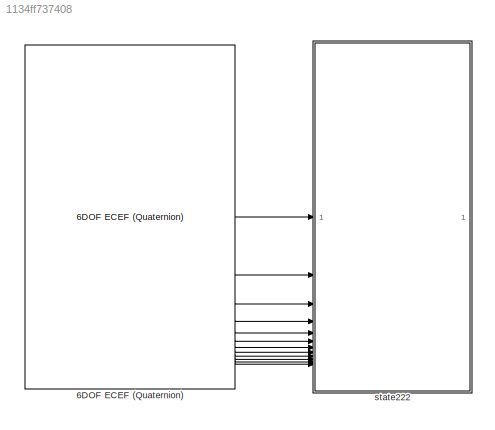
MODEL slx_1134ff737408
KIND model
CONFIG AbsTol = auto
CONFIG EnableMultiTasking = off
CONFIG FixedStep = auto
CONFIG MaxStep = auto
CONFIG MinStep = auto
CONFIG RelTol = 1e-3
CONFIG SampleTimeConstraint = Unconstrained
CONFIG SolverName = VariableStepAuto
CONFIG StartTime = 0.0
CONFIG StopTime = 10.0
BLOCK [Reference] 6DOF ECEF (Quaternion)  REF=aerolib6dof2/6DOF ECEF (Quaternion)
  Commented = on
  SourceBlock = aerolib6dof2/6DOF ECEF (Quaternion)
  SourceType = 6DOF EoM (ECEF)
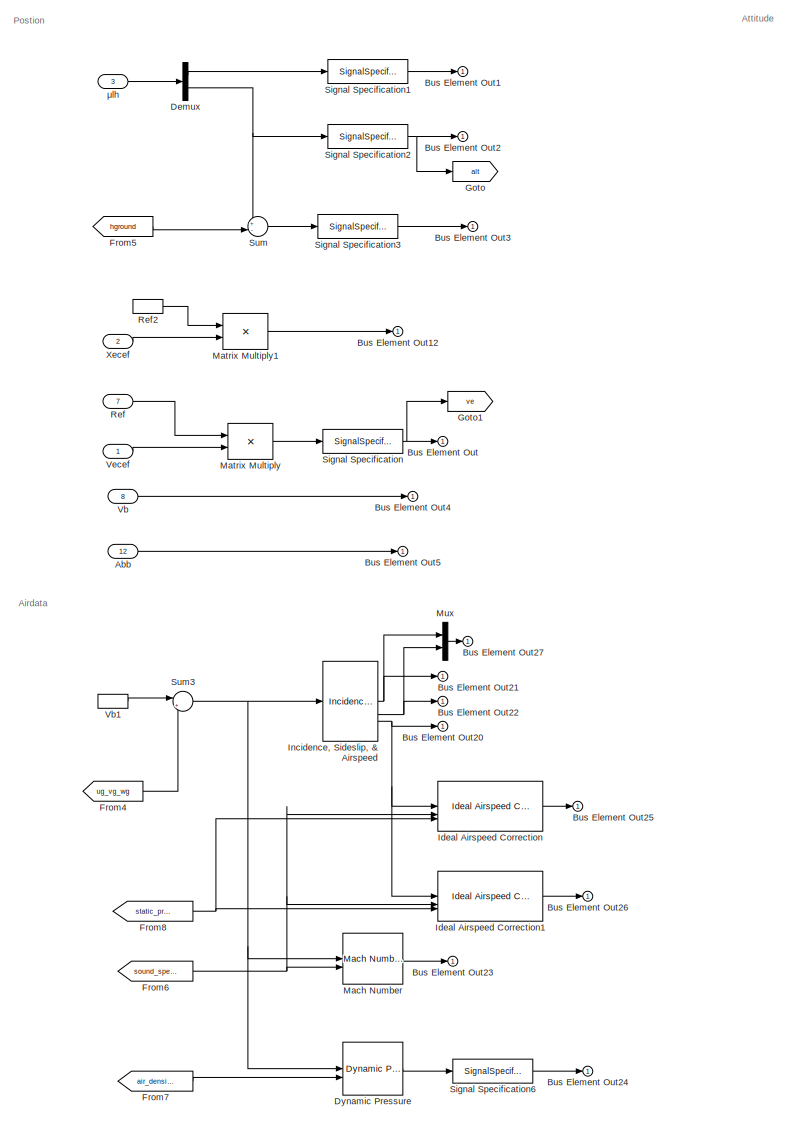
[diagram: state222 - part 1/3, left side, full height]
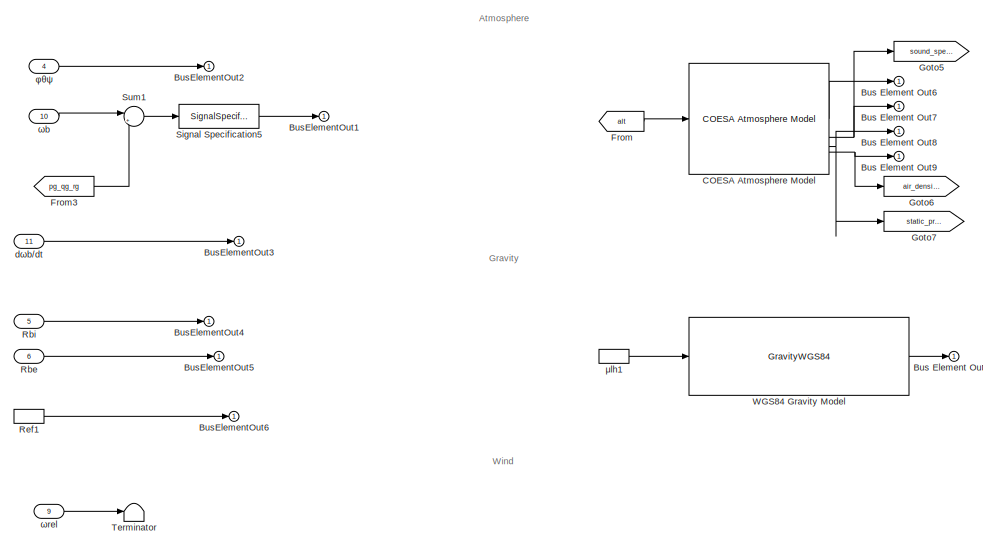
[diagram: state222 - part 2/3, top center region]
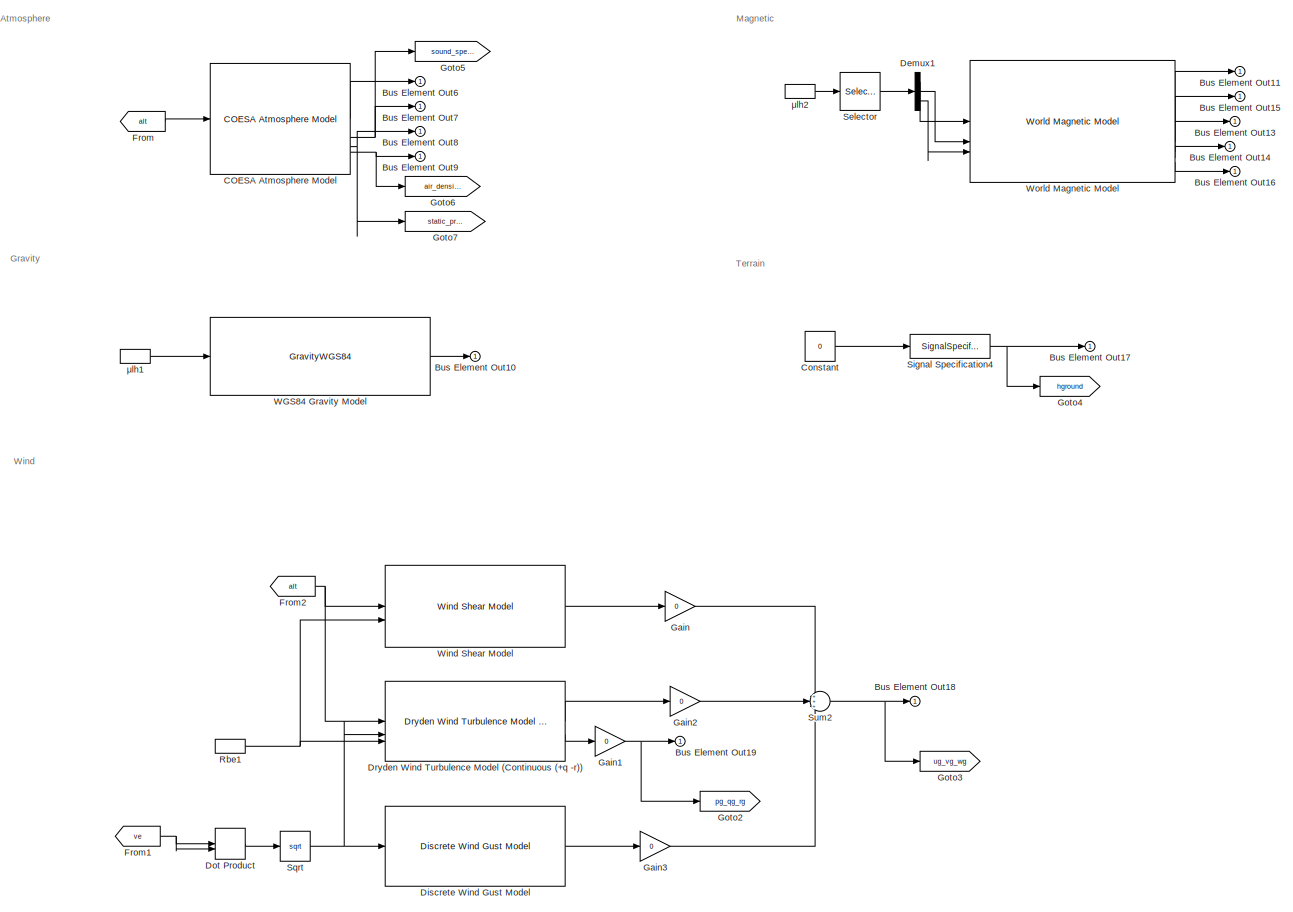
[diagram: state222 - part 3/3, right side, full height]
BLOCK [SubSystem] state222
  Commented = on
BLOCK [Inport] state222/Abb
  Port = 12
BLOCK [Outport] state222/Bus Element Out
BLOCK [Outport] state222/Bus Element Out1
BLOCK [Outport] state222/Bus Element Out10
BLOCK [Outport] state222/Bus Element Out11
BLOCK [Outport] state222/Bus Element Out12
BLOCK [Outport] state222/Bus Element Out13
BLOCK [Outport] state222/Bus Element Out14
BLOCK [Outport] state222/Bus Element Out15
BLOCK [Outport] state222/Bus Element Out16
BLOCK [Outport] state222/Bus Element Out17
BLOCK [Outport] state222/Bus Element Out18
BLOCK [Outport] state222/Bus Element Out19
BLOCK [Outport] state222/Bus Element Out2
BLOCK [Outport] state222/Bus Element Out20
BLOCK [Outport] state222/Bus Element Out21
BLOCK [Outport] state222/Bus Element Out22
BLOCK [Outport] state222/Bus Element Out23
BLOCK [Outport] state222/Bus Element Out24
BLOCK [Outport] state222/Bus Element Out25
BLOCK [Outport] state222/Bus Element Out26
BLOCK [Outport] state222/Bus Element Out27
BLOCK [Outport] state222/Bus Element Out3
BLOCK [Outport] state222/Bus Element Out4
BLOCK [Outport] state222/Bus Element Out5
BLOCK [Outport] state222/Bus Element Out6
BLOCK [Outport] state222/Bus Element Out7
BLOCK [Outport] state222/Bus Element Out8
BLOCK [Outport] state222/Bus Element Out9
BLOCK [Outport] state222/BusElementOut1
BLOCK [Outport] state222/BusElementOut2
BLOCK [Outport] state222/BusElementOut3
BLOCK [Outport] state222/BusElementOut4
BLOCK [Outport] state222/BusElementOut5
BLOCK [Outport] state222/BusElementOut6
BLOCK [Reference] state222/COESA Atmosphere Model  REF=aerolibatmos2/COESA Atmosphere Model
  SourceBlock = aerolibatmos2/COESA Atmosphere Model
  SourceType = Atmosphere Model
BLOCK [Constant] state222/Constant
  Value = 0
BLOCK [Demux] state222/Demux
  Outputs = [2 1]
BLOCK [Demux] state222/Demux1
  Outputs = 3
BLOCK [Reference] state222/Discrete Wind Gust Model  REF=aerolibwind2/Discrete Wind Gust Model
  SourceBlock = aerolibwind2/Discrete Wind Gust Model
  SourceType = Discrete Wind Gust Model
BLOCK [DotProduct] state222/Dot Product
  OutDataTypeStr = Inherit: Inherit via internal rule
BLOCK [Reference] state222/Dryden Wind Turbulence Model (Continuous (+q -r))  REF=aerolibwind2/Dryden Wind Turbulence Model 
(Continuous (+q -r))
  Commented = on
  SourceBlock = aerolibwind2/Dryden Wind Turbulence Model \n(Continuous (+q -r))
  SourceType = Wind Turbulence Model
BLOCK [Reference] state222/Dynamic Pressure  REF=aerolibasang/Dynamic Pressure
  SourceBlock = aerolibasang/Dynamic Pressure
  SourceType = Dynamic Pressure
BLOCK [From] state222/From
  GotoTag = alt
BLOCK [From] state222/From1
  GotoTag = ve
BLOCK [From] state222/From2
  GotoTag = alt
BLOCK [From] state222/From3
  GotoTag = pg_qg_rg
BLOCK [From] state222/From4
  GotoTag = ug_vg_wg
BLOCK [From] state222/From5
  GotoTag = hground
BLOCK [From] state222/From6
  GotoTag = sound_speed
BLOCK [From] state222/From7
  GotoTag = air_density
BLOCK [From] state222/From8
  GotoTag = static_pressure
BLOCK [Gain] state222/Gain
  Gain = 0
BLOCK [Gain] state222/Gain1
  Gain = 0
BLOCK [Gain] state222/Gain2
  Gain = 0
BLOCK [Gain] state222/Gain3
  Gain = 0
BLOCK [Goto] state222/Goto
  GotoTag = alt
BLOCK [Goto] state222/Goto1
  GotoTag = ve
BLOCK [Goto] state222/Goto2
  GotoTag = pg_qg_rg
BLOCK [Goto] state222/Goto3
  GotoTag = ug_vg_wg
BLOCK [Goto] state222/Goto4
  GotoTag = hground
BLOCK [Goto] state222/Goto5
  GotoTag = sound_speed
BLOCK [Goto] state222/Goto6
  GotoTag = air_density
BLOCK [Goto] state222/Goto7
  GotoTag = static_pressure
BLOCK [Reference] state222/Ideal Airspeed Correction  REF=aerolibasang/Ideal Airspeed Correction
  SourceBlock = aerolibasang/Ideal Airspeed Correction
  SourceType = Ideal Airspeed Correction
BLOCK [Reference] state222/Ideal Airspeed Correction1  REF=aerolibasang/Ideal Airspeed Correction
  SourceBlock = aerolibasang/Ideal Airspeed Correction
  SourceType = Ideal Airspeed Correction
BLOCK [Reference] state222/Incidence, Sideslip, & Airspeed  REF=aerolibasang/Incidence, Sideslip,
& Airspeed
  SourceBlock = aerolibasang/Incidence, Sideslip,\n& Airspeed
  SourceType = Incidence,Sideslip,&Airspeed
BLOCK [Reference] state222/Mach Number  REF=aerolibasang/Mach Number
  SourceBlock = aerolibasang/Mach Number
  SourceType = Mach Number
BLOCK [Product] state222/Matrix Multiply
  Multiplication = Matrix(*)
BLOCK [Product] state222/Matrix Multiply1
  Multiplication = Matrix(*)
BLOCK [Mux] state222/Mux
  DisplayOption = bar
  Inputs = 2
BLOCK [Inport] state222/Rbe
  Port = 6
BLOCK [InportShadow] state222/Rbe1
  Port = 6
BLOCK [Inport] state222/Rbi
  Port = 5
BLOCK [Inport] state222/Ref
  Port = 7
BLOCK [InportShadow] state222/Ref1
  Port = 7
BLOCK [InportShadow] state222/Ref2
  Port = 7
BLOCK [Selector] state222/Selector
  IndexOptions = Index vector (dialog)
  Indices = [3 1 2]
  InputPortWidth = 3
  OutputSizes = 1
BLOCK [SignalSpecification] state222/Signal Specification
  Unit = m/s
BLOCK [SignalSpecification] state222/Signal Specification1
  Unit = deg
BLOCK [SignalSpecification] state222/Signal Specification2
  Unit = m
BLOCK [SignalSpecification] state222/Signal Specification3
  Unit = m
BLOCK [SignalSpecification] state222/Signal Specification4
  Unit = m
BLOCK [SignalSpecification] state222/Signal Specification5
  Unit = rad/s
BLOCK [SignalSpecification] state222/Signal Specification6
  Unit = Pa
BLOCK [Sqrt] state222/Sqrt
BLOCK [Sum] state222/Sum
  Inputs = +-|
BLOCK [Sum] state222/Sum1
  Inputs = |++
BLOCK [Sum] state222/Sum2
  Inputs = +++
BLOCK [Sum] state222/Sum3
  Inputs = |+-
BLOCK [Terminator] state222/Terminator
BLOCK [Inport] state222/Vb
  Port = 8
BLOCK [InportShadow] state222/Vb1
  Port = 8
BLOCK [Inport] state222/Vecef
BLOCK [GravityWGS84] state222/WGS84 Gravity Model  
BLOCK [Reference] state222/Wind Shear Model  REF=aerolibwind2/Wind Shear Model
  SourceBlock = aerolibwind2/Wind Shear Model
  SourceType = Wind Shear Model
BLOCK [Reference] state222/World Magnetic Model  REF=aerolibgravity2/World Magnetic Model
  AttributesFormatString = %<model>
  SourceBlock = aerolibgravity2/World Magnetic Model
  SourceType = WorldMagneticModel
BLOCK [Inport] state222/Xecef
  Port = 2
BLOCK [Inport] state222/dωb//dt
  Port = 11
BLOCK [Inport] state222/μlh
  Port = 3
BLOCK [InportShadow] state222/μlh1
  Port = 3
BLOCK [InportShadow] state222/μlh2
  Port = 3
BLOCK [Inport] state222/φθψ
  Port = 4
BLOCK [Inport] state222/ωb
  Port = 10
BLOCK [Inport] state222/ωrel
  Port = 9
ANNOTATION state222: Airdata
ANNOTATION state222: Atmosphere
ANNOTATION state222: Attitude
ANNOTATION state222: Gravity
ANNOTATION state222: Magnetic
ANNOTATION state222: Postion
ANNOTATION state222: Terrain
ANNOTATION state222: Wind
LINE 6DOF ECEF (Quaternion):1 -> state222:1
LINE 6DOF ECEF (Quaternion):10 -> state222:10
LINE 6DOF ECEF (Quaternion):11 -> state222:11
LINE 6DOF ECEF (Quaternion):12 -> state222:12
LINE 6DOF ECEF (Quaternion):2 -> state222:2
LINE 6DOF ECEF (Quaternion):3 -> state222:3
LINE 6DOF ECEF (Quaternion):4 -> state222:4
LINE 6DOF ECEF (Quaternion):5 -> state222:5
LINE 6DOF ECEF (Quaternion):6 -> state222:6
LINE 6DOF ECEF (Quaternion):7 -> state222:7
LINE 6DOF ECEF (Quaternion):8 -> state222:8
LINE 6DOF ECEF (Quaternion):9 -> state222:9
LINE state222/Abb:1 -> state222/Bus Element Out5:1
LINE state222/COESA Atmosphere Model:1 -> state222/Bus Element Out6:1
NET state222/COESA Atmosphere Model:2 -> state222/Bus Element Out7:1, state222/Goto5:1
NET state222/COESA Atmosphere Model:3 -> state222/Bus Element Out8:1, state222/Goto7:1
NET state222/COESA Atmosphere Model:4 -> state222/Bus Element Out9:1, state222/Goto6:1
LINE state222/Constant:1 -> state222/Signal Specification4:1
LINE state222/Demux1:1 -> state222/World Magnetic Model:1
LINE state222/Demux1:2 -> state222/World Magnetic Model:2
LINE state222/Demux1:3 -> state222/World Magnetic Model:3
LINE state222/Demux:1 -> state222/Signal Specification1:1
NET state222/Demux:2 -> state222/Signal Specification2:1, state222/Sum:1
LINE state222/Discrete Wind Gust Model:1 -> state222/Gain3:1
LINE state222/Dot Product:1 -> state222/Sqrt:1
LINE state222/Dryden Wind Turbulence Model (Continuous (+q -r)):1 -> state222/Gain2:1
LINE state222/Dryden Wind Turbulence Model (Continuous (+q -r)):2 -> state222/Gain1:1
LINE state222/Dynamic Pressure:1 -> state222/Signal Specification6:1
NET state222/From1:1 -> state222/Dot Product:1, state222/Dot Product:2
NET state222/From2:1 -> state222/Dryden Wind Turbulence Model (Continuous (+q -r)):1, state222/Wind Shear Model:1
LINE state222/From3:1 -> state222/Sum1:2
LINE state222/From4:1 -> state222/Sum3:2
LINE state222/From5:1 -> state222/Sum:2
NET state222/From6:1 -> state222/Ideal Airspeed Correction1:2, state222/Ideal Airspeed Correction:2, state222/Mach Number:2
LINE state222/From7:1 -> state222/Dynamic Pressure:2
NET state222/From8:1 -> state222/Ideal Airspeed Correction1:3, state222/Ideal Airspeed Correction:3
LINE state222/From:1 -> state222/COESA Atmosphere Model:1
NET state222/Gain1:1 -> state222/Bus Element Out19:1, state222/Goto2:1
LINE state222/Gain2:1 -> state222/Sum2:2
LINE state222/Gain3:1 -> state222/Sum2:3
LINE state222/Gain:1 -> state222/Sum2:1
LINE state222/Ideal Airspeed Correction1:1 -> state222/Bus Element Out26:1
LINE state222/Ideal Airspeed Correction:1 -> state222/Bus Element Out25:1
NET state222/Incidence, Sideslip, & Airspeed:1 -> state222/Bus Element Out21:1, state222/Mux:1
NET state222/Incidence, Sideslip, & Airspeed:2 -> state222/Bus Element Out22:1, state222/Mux:2
NET state222/Incidence, Sideslip, & Airspeed:3 -> state222/Bus Element Out20:1, state222/Ideal Airspeed Correction1:1, state222/Ideal Airspeed Correction:1
LINE state222/Mach Number:1 -> state222/Bus Element Out23:1
LINE state222/Matrix Multiply1:1 -> state222/Bus Element Out12:1
LINE state222/Matrix Multiply:1 -> state222/Signal Specification:1
LINE state222/Mux:1 -> state222/Bus Element Out27:1
NET state222/Rbe1:1 -> state222/Dryden Wind Turbulence Model (Continuous (+q -r)):3, state222/Wind Shear Model:2
LINE state222/Rbe:1 -> state222/BusElementOut5:1
LINE state222/Rbi:1 -> state222/BusElementOut4:1
LINE state222/Ref1:1 -> state222/BusElementOut6:1
LINE state222/Ref2:1 -> state222/Matrix Multiply1:1
LINE state222/Ref:1 -> state222/Matrix Multiply:1
LINE state222/Selector:1 -> state222/Demux1:1
LINE state222/Signal Specification1:1 -> state222/Bus Element Out1:1
NET state222/Signal Specification2:1 -> state222/Bus Element Out2:1, state222/Goto:1
LINE state222/Signal Specification3:1 -> state222/Bus Element Out3:1
NET state222/Signal Specification4:1 -> state222/Bus Element Out17:1, state222/Goto4:1
LINE state222/Signal Specification5:1 -> state222/BusElementOut1:1
LINE state222/Signal Specification6:1 -> state222/Bus Element Out24:1
NET state222/Signal Specification:1 -> state222/Bus Element Out:1, state222/Goto1:1
NET state222/Sqrt:1 -> state222/Discrete Wind Gust Model:1, state222/Dryden Wind Turbulence Model (Continuous (+q -r)):2
LINE state222/Sum1:1 -> state222/Signal Specification5:1
NET state222/Sum2:1 -> state222/Bus Element Out18:1, state222/Goto3:1
NET state222/Sum3:1 -> state222/Dynamic Pressure:1, state222/Incidence, Sideslip, & Airspeed:1, state222/Mach Number:1
LINE state222/Sum:1 -> state222/Signal Specification3:1
LINE state222/Vb1:1 -> state222/Sum3:1
LINE state222/Vb:1 -> state222/Bus Element Out4:1
LINE state222/Vecef:1 -> state222/Matrix Multiply:2
LINE state222/WGS84 Gravity Model  :1 -> state222/Bus Element Out10:1
LINE state222/Wind Shear Model:1 -> state222/Gain:1
LINE state222/World Magnetic Model:1 -> state222/Bus Element Out11:1
LINE state222/World Magnetic Model:2 -> state222/Bus Element Out15:1
LINE state222/World Magnetic Model:3 -> state222/Bus Element Out13:1
LINE state222/World Magnetic Model:4 -> state222/Bus Element Out14:1
LINE state222/World Magnetic Model:5 -> state222/Bus Element Out16:1
LINE state222/Xecef:1 -> state222/Matrix Multiply1:2
LINE state222/dωb//dt:1 -> state222/BusElementOut3:1
LINE state222/μlh1:1 -> state222/WGS84 Gravity Model  :1
LINE state222/μlh2:1 -> state222/Selector:1
LINE state222/μlh:1 -> state222/Demux:1
LINE state222/φθψ:1 -> state222/BusElementOut2:1
LINE state222/ωb:1 -> state222/Sum1:1
LINE state222/ωrel:1 -> state222/Terminator:1
note: NET lines group one-source signal fan-out (src -> all destinations, sorted); 1:1 wires keep LINE
